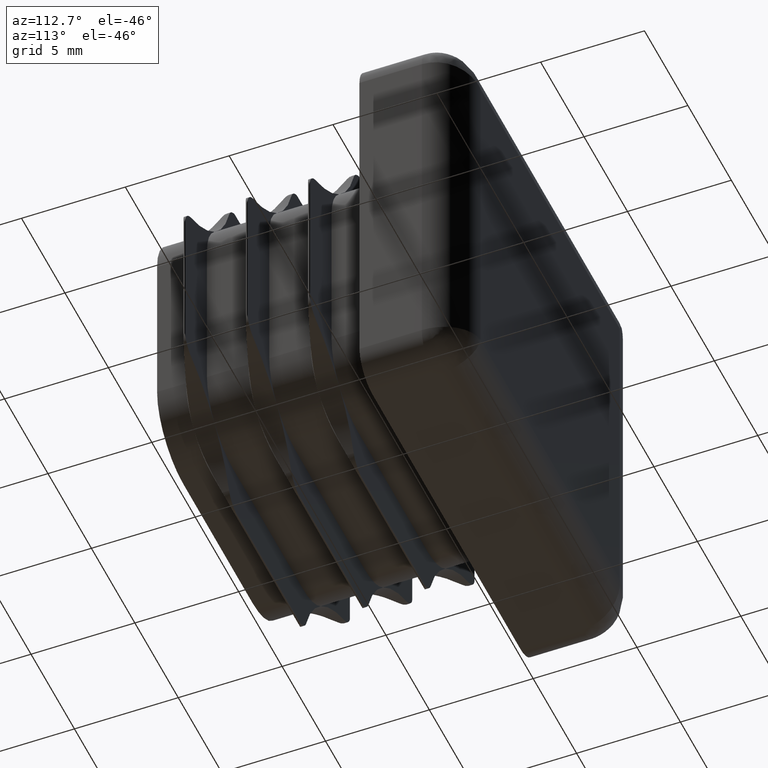
[diagram: clean part render]
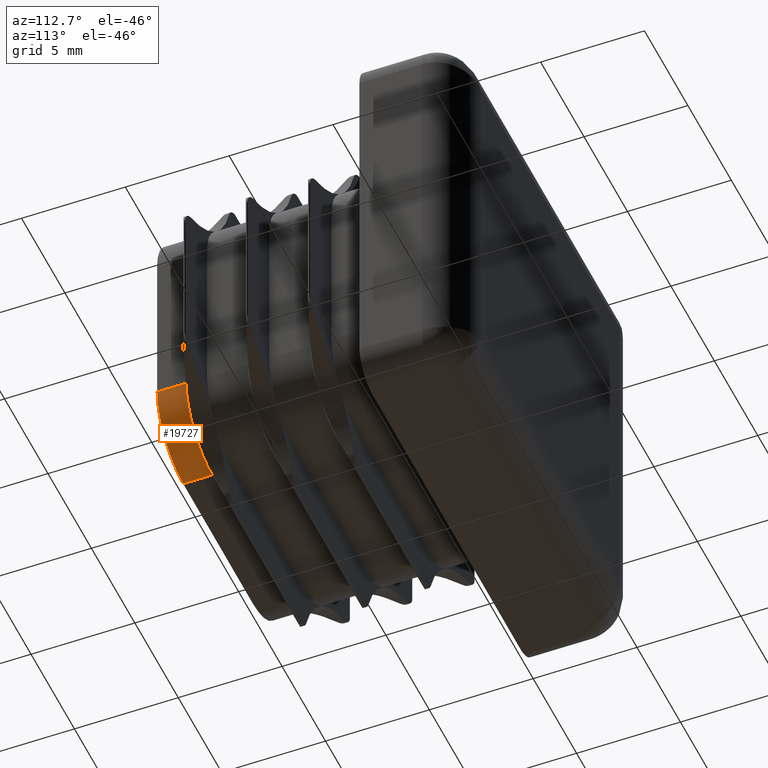
[diagram: same view with one face highlighted and labeled with its STEP entity id]
A machine part, auxiliary view. The second image highlights one B-rep face of the part: STEP entity #19727.
In plain terms, the highlighted cylindrical surface (partial cylindrical patch) has radius 3 mm, axis along (-0, 1, -0).
Its self-contained STEP definition (entity closure, byte-faithful):
#319 = LINE ( 'NONE', #4077, #8481 ) ;
#703 = AXIS2_PLACEMENT_3D ( 'NONE', #4466, #9466, #4664 ) ;
#736 = AXIS2_PLACEMENT_3D ( 'NONE', #2588, #12473, #9138 ) ;
#1059 = DIRECTION ( 'NONE',  ( 0.000000000000000000, 1.000000000000000000, 0.000000000000000000 ) ) ;
#2588 = CARTESIAN_POINT ( 'NONE',  ( 3.999999999999982681, -11.00000000000000000, -3.999999999999982681 ) ) ;
#3094 = VERTEX_POINT ( 'NONE', #16107 ) ;
#3257 = EDGE_CURVE ( 'NONE', #3094, #19038, #11819, .T. ) ;
#3847 = CIRCLE ( 'NONE', #736, 2.999999999999999112 ) ;
#4035 = CARTESIAN_POINT ( 'NONE',  ( 6.999999999999978684, -9.600000000000019185, -3.999999999999982681 ) ) ;
#4077 = CARTESIAN_POINT ( 'NONE',  ( 3.999999999999982681, -11.00000000000000000, -6.999999999999985789 ) ) ;
#4466 = CARTESIAN_POINT ( 'NONE',  ( 3.999999999999982681, -11.00000000000000000, -3.999999999999982681 ) ) ;
#4664 = DIRECTION ( 'NONE',  ( 0.000000000000000000, 0.000000000000000000, 1.000000000000000000 ) ) ;
#4948 = CARTESIAN_POINT ( 'NONE',  ( 6.999999999999978684, -11.00000000000000000, -3.999999999999982681 ) ) ;
#4949 = EDGE_LOOP ( 'NONE', ( #20925, #7397, #12116, #9228, #20207 ) ) ;
#5427 = EDGE_CURVE ( 'NONE', #10539, #21021, #319, .T. ) ;
#7397 = ORIENTED_EDGE ( 'NONE', *, *, #17914, .F. ) ;
#7924 = FACE_OUTER_BOUND ( 'NONE', #4949, .T. ) ;
#7939 = DIRECTION ( 'NONE',  ( 1.000000000000000000, 0.000000000000000000, -5.782411586589250156E-16 ) ) ;
#8481 = VECTOR ( 'NONE', #18626, 1000.000000000000000 ) ;
#8745 = EDGE_CURVE ( 'NONE', #10424, #21021, #20618, .T. ) ;
#9138 = DIRECTION ( 'NONE',  ( 0.000000000000000000, 0.000000000000000000, -1.000000000000000000 ) ) ;
#9228 = ORIENTED_EDGE ( 'NONE', *, *, #9943, .F. ) ;
#9466 = DIRECTION ( 'NONE',  ( -0.000000000000000000, 1.000000000000000000, -0.000000000000000000 ) ) ;
#9943 = EDGE_CURVE ( 'NONE', #10539, #3094, #3847, .T. ) ;
#10424 = VERTEX_POINT ( 'NONE', #20197 ) ;
#10539 = VERTEX_POINT ( 'NONE', #18986 ) ;
#11254 = CIRCLE ( 'NONE', #18410, 3.000000000000055511 ) ;
#11819 = LINE ( 'NONE', #4948, #19204 ) ;
#12116 = ORIENTED_EDGE ( 'NONE', *, *, #3257, .F. ) ;
#12473 = DIRECTION ( 'NONE',  ( 0.000000000000000000, -1.000000000000000000, 0.000000000000000000 ) ) ;
#13228 = DIRECTION ( 'NONE',  ( -0.000000000000000000, 1.000000000000000000, -0.000000000000000000 ) ) ;
#15836 = DIRECTION ( 'NONE',  ( 0.000000000000000000, 1.000000000000000000, 0.000000000000000000 ) ) ;
#15908 = CARTESIAN_POINT ( 'NONE',  ( 3.999999999999982681, -9.599999999999999645, -3.999999999999982681 ) ) ;
#16107 = CARTESIAN_POINT ( 'NONE',  ( 6.999999999999978684, -11.00000000000000000, -3.999999999999982681 ) ) ;
#16822 = CYLINDRICAL_SURFACE ( 'NONE', #703, 2.999999999999999112 ) ;
#16832 = AXIS2_PLACEMENT_3D ( 'NONE', #19040, #1059, #18978 ) ;
#17914 = EDGE_CURVE ( 'NONE', #19038, #10424, #11254, .T. ) ;
#18410 = AXIS2_PLACEMENT_3D ( 'NONE', #15908, #15836, #7939 ) ;
#18626 = DIRECTION ( 'NONE',  ( -0.000000000000000000, 1.000000000000000000, -0.000000000000000000 ) ) ;
#18978 = DIRECTION ( 'NONE',  ( 1.000000000000000000, 0.000000000000000000, -5.782411586589250156E-16 ) ) ;
#18986 = CARTESIAN_POINT ( 'NONE',  ( 3.999999999999982681, -11.00000000000000000, -6.999999999999985789 ) ) ;
#19038 = VERTEX_POINT ( 'NONE', #4035 ) ;
#19040 = CARTESIAN_POINT ( 'NONE',  ( 3.999999999999982681, -9.599999999999999645, -3.999999999999982681 ) ) ;
#19148 = CARTESIAN_POINT ( 'NONE',  ( 3.999999999999982681, -9.600000000000017408, -6.999999999999985789 ) ) ;
#19204 = VECTOR ( 'NONE', #13228, 1000.000000000000000 ) ;
#19727 = ADVANCED_FACE ( 'NONE', ( #7924 ), #16822, .T. ) ;
#20197 = CARTESIAN_POINT ( 'NONE',  ( 6.121320343559607302, -9.600000000000019185, -6.121320343559641941 ) ) ;
#20207 = ORIENTED_EDGE ( 'NONE', *, *, #5427, .T. ) ;
#20618 = CIRCLE ( 'NONE', #16832, 3.000000000000055511 ) ;
#20925 = ORIENTED_EDGE ( 'NONE', *, *, #8745, .F. ) ;
#21021 = VERTEX_POINT ( 'NONE', #19148 ) ;